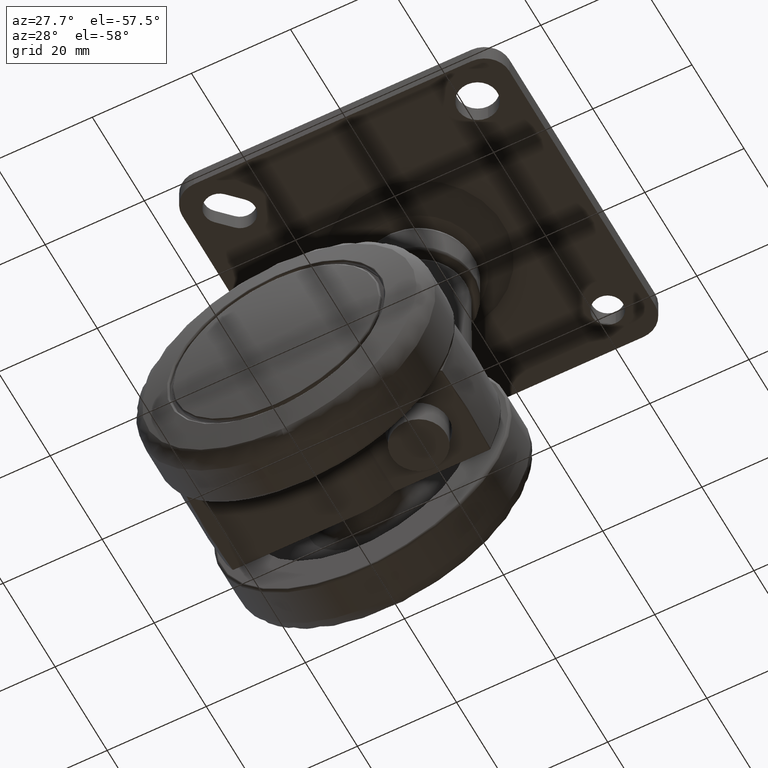
[diagram: clean part render]
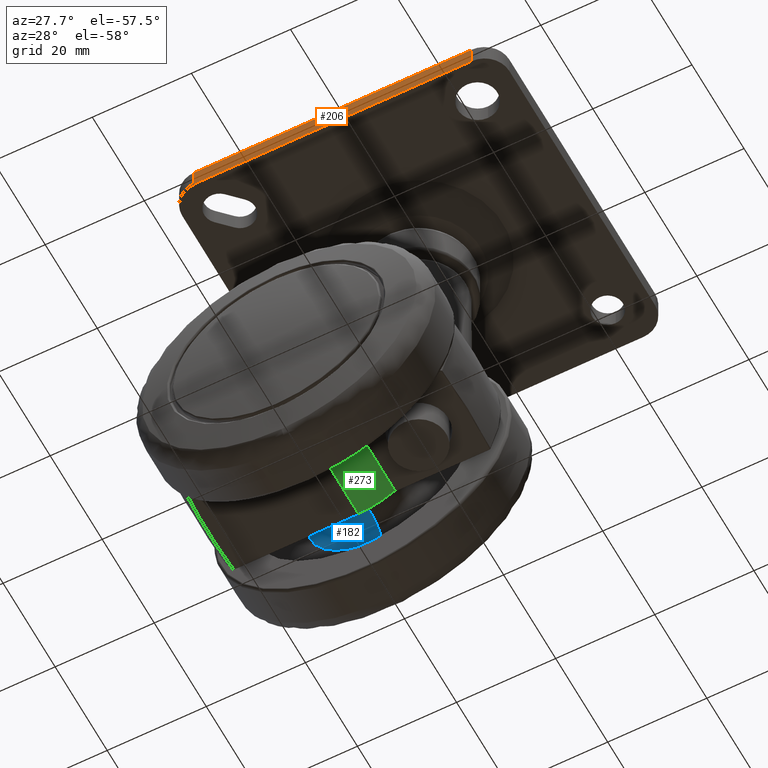
[diagram: same view with three faces highlighted in distinct colors, each labeled with its STEP entity id]
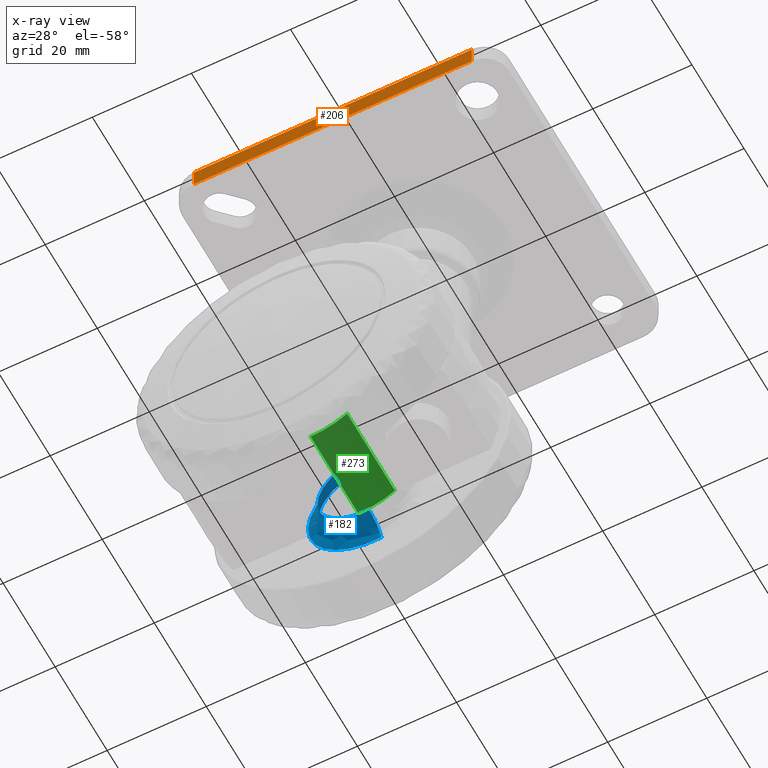
[diagram: x-ray of the same camera — body ghosted, the three highlighted faces saturated]
A machine part, auxiliary view with three faces highlighted in distinct colors.
The next image is the same camera in x-ray (body ghosted, the three faces saturated) — at least one of them is partly hidden behind the body in this view.
Their STEP definitions:

[orange] entity #206 — the highlighted planar face has unit normal (0, 1, -0).
#206=ADVANCED_FACE('',(#820),#819,.F.);
#819=PLANE('',#2691);
#820=FACE_OUTER_BOUND('',#2692,.T.);
#2688=CARTESIAN_POINT('',(-3.36000000000E+01,-3.80000000000E-01,-3.30000000000E+01));
#2689=DIRECTION('',(1.10433547828E-15,-2.80045621353E-29,1.00000000000E+00));
#2690=DIRECTION('',(1.00000000000E+00,-3.30514048027E-30,-1.10433547828E-15));
#2691=AXIS2_PLACEMENT_3D('',#2688,#2689,#2690);
#2692=EDGE_LOOP('',(#6341,#6342,#6343,#6344));
#6341=ORIENTED_EDGE('',*,*,#6922,.F.);
#6342=ORIENTED_EDGE('',*,*,#6946,.T.);
#6343=ORIENTED_EDGE('',*,*,#6900,.T.);
#6344=ORIENTED_EDGE('',*,*,#6947,.T.);
#6900=EDGE_CURVE('',#7772,#7773,#7774,.T.);
#6922=EDGE_CURVE('',#7920,#7927,#7928,.T.);
#6946=EDGE_CURVE('',#7920,#7772,#8088,.T.);
#6947=EDGE_CURVE('',#7773,#7927,#8094,.T.);
#7772=VERTEX_POINT('',#9847);
#7773=VERTEX_POINT('',#9848);
#7774=LINE('',#9849,#9850);
#7920=VERTEX_POINT('',#9946);
#7927=VERTEX_POINT('',#9951);
#7928=LINE('',#9952,#9953);
#8088=LINE('',#10053,#10054);
#8094=LINE('',#10056,#10057);
#9847=CARTESIAN_POINT('',(2.80000000000E+01,-8.32667268469E-14,-3.30000000000E+01));
#9848=CARTESIAN_POINT('',(-2.80000000000E+01,-8.32667268469E-14,-3.30000000000E+01));
#9849=CARTESIAN_POINT('',(2.80000000000E+01,-8.32667268469E-14,-3.30000000000E+01));
#9850=VECTOR('',#9851,5.60000000000E+01);
#9851=DIRECTION('',(-1.00000000000E+00,0.00000000000E+00,1.26882631386E-16));
#9946=CARTESIAN_POINT('',(2.80000000000E+01,3.80000000000E+00,-3.30000000000E+01));
#9951=CARTESIAN_POINT('',(-2.80000000000E+01,3.80000000000E+00,-3.30000000000E+01));
#9952=CARTESIAN_POINT('',(2.80000000000E+01,3.80000000000E+00,-3.30000000000E+01));
#9953=VECTOR('',#9954,5.60000000000E+01);
#9954=DIRECTION('',(-1.00000000000E+00,0.00000000000E+00,1.26882631386E-16));
#10053=CARTESIAN_POINT('',(2.80000000000E+01,3.80000000000E+00,-3.30000000000E+01));
#10054=VECTOR('',#10055,3.80000000000E+00);
#10055=DIRECTION('',(0.00000000000E+00,-1.00000000000E+00,0.00000000000E+00));
#10056=CARTESIAN_POINT('',(-2.80000000000E+01,-8.32667268469E-14,-3.30000000000E+01));
#10057=VECTOR('',#10058,3.80000000000E+00);
#10058=DIRECTION('',(0.00000000000E+00,1.00000000000E+00,0.00000000000E+00));

[blue] entity #182 — the highlighted face is a freeform B-spline surface patch.
#182=ADVANCED_FACE('',(#568),#567,.F.);
#567=( BOUNDED_SURFACE() B_SPLINE_SURFACE( 2,2,((#2283,#2284,#2285,#2286,#2287),(#2288,#2289,#2290,#2291,#2292),(#2293,#2294,#2295,#2296,#2297),(#2298,#2299,#2300,#2301,#2302),(#2303,#2304,#2305,#2306,#2307)), .UNSPECIFIED.,.F.,.F.,.F.) B_SPLINE_SURFACE_WITH_KNOTS((3,2,3),(3,2,3),(0.00000000000E+00,5.00000000000E-01,1.00000000000E+00),(0.00000000000E+00,5.00000000000E-01,1.00000000000E+00), .UNSPECIFIED. ) GEOMETRIC_REPRESENTATION_ITEM() RATIONAL_B_SPLINE_SURFACE(((1.00000000000E+00,7.07106781187E-01,1.00000000000E+00,7.07106781187E-01,1.00000000000E+00),(7.07106781187E-01,5.00000000000E-01,7.07106781187E-01,5.00000000000E-01,7.07106781187E-01),(1.00000000000E+00,7.07106781187E-01,1.00000000000E+00,7.07106781187E-01,1.00000000000E+00),(7.07106781187E-01,5.00000000000E-01,7.07106781187E-01,5.00000000000E-01,7.07106781187E-01),(1.00000000000E+00,7.07106781187E-01,1.00000000000E+00,7.07106781187E-01,1.00000000000E+00))) REPRESENTATION_ITEM('') SURFACE() );
#568=FACE_OUTER_BOUND('',#2308,.T.);
#2283=CARTESIAN_POINT('',(-9.50000000000E+00,6.59156497812E-16,1.00000000000E+00));
#2284=CARTESIAN_POINT('',(-9.50000000000E+00,6.59156497812E-16,5.00000000000E+00));
#2285=CARTESIAN_POINT('',(-1.35000000000E+01,9.36696075839E-16,5.00000000000E+00));
#2286=CARTESIAN_POINT('',(-1.75000000000E+01,1.21423565387E-15,5.00000000000E+00));
#2287=CARTESIAN_POINT('',(-1.75000000000E+01,1.21423565387E-15,1.00000000000E+00));
#2288=CARTESIAN_POINT('',(-9.50000000000E+00,9.50000000000E+00,1.00000000000E+00));
#2289=CARTESIAN_POINT('',(-9.50000000000E+00,9.50000000000E+00,5.00000000000E+00));
#2290=CARTESIAN_POINT('',(-1.35000000000E+01,1.35000000000E+01,5.00000000000E+00));
#2291=CARTESIAN_POINT('',(-1.75000000000E+01,1.75000000000E+01,5.00000000000E+00));
#2292=CARTESIAN_POINT('',(-1.75000000000E+01,1.75000000000E+01,1.00000000000E+00));
#2293=CARTESIAN_POINT('',(7.74492682175E-17,9.50000000000E+00,1.00000000000E+00));
#2294=CARTESIAN_POINT('',(7.74492682175E-17,9.50000000000E+00,5.00000000000E+00));
#2295=CARTESIAN_POINT('',(1.10059486414E-16,1.35000000000E+01,5.00000000000E+00));
#2296=CARTESIAN_POINT('',(1.42669704611E-16,1.75000000000E+01,5.00000000000E+00));
#2297=CARTESIAN_POINT('',(1.42669704611E-16,1.75000000000E+01,1.00000000000E+00));
#2298=CARTESIAN_POINT('',(9.50000000000E+00,9.50000000000E+00,1.00000000000E+00));
#2299=CARTESIAN_POINT('',(9.50000000000E+00,9.50000000000E+00,5.00000000000E+00));
#2300=CARTESIAN_POINT('',(1.35000000000E+01,1.35000000000E+01,5.00000000000E+00));
#2301=CARTESIAN_POINT('',(1.75000000000E+01,1.75000000000E+01,5.00000000000E+00));
#2302=CARTESIAN_POINT('',(1.75000000000E+01,1.75000000000E+01,1.00000000000E+00));
#2303=CARTESIAN_POINT('',(9.50000000000E+00,5.04257961378E-16,1.00000000000E+00));
#2304=CARTESIAN_POINT('',(9.50000000000E+00,5.04257961378E-16,5.00000000000E+00));
#2305=CARTESIAN_POINT('',(1.35000000000E+01,7.16577103010E-16,5.00000000000E+00));
#2306=CARTESIAN_POINT('',(1.75000000000E+01,9.28896244643E-16,5.00000000000E+00));
#2307=CARTESIAN_POINT('',(1.75000000000E+01,9.28896244643E-16,1.00000000000E+00));
#2308=EDGE_LOOP('',(#6212,#6213,#6214,#6215));
#6212=ORIENTED_EDGE('',*,*,#6823,.F.);
#6213=ORIENTED_EDGE('',*,*,#6872,.F.);
#6214=ORIENTED_EDGE('',*,*,#6870,.F.);
#6215=ORIENTED_EDGE('',*,*,#6873,.T.);
#6823=EDGE_CURVE('',#7261,#7260,#7268,.T.);
#6870=EDGE_CURVE('',#7569,#7562,#7582,.T.);
#6872=EDGE_CURVE('',#7562,#7261,#7594,.T.);
#6873=EDGE_CURVE('',#7569,#7260,#7600,.T.);
#7260=VERTEX_POINT('',#9525);
#7261=VERTEX_POINT('',#9526);
#7268=CIRCLE('',#9534,1.35000000000E+01);
#7562=VERTEX_POINT('',#9724);
#7569=VERTEX_POINT('',#9727);
#7582=CIRCLE('',#9737,9.50000000000E+00);
#7594=(BOUNDED_CURVE() B_SPLINE_CURVE(2,(#9742,#9743,#9744),.UNSPECIFIED.,.F.,.F.) B_SPLINE_CURVE_WITH_KNOTS((3,3),(0.00000000000E+00,5.00000000000E-01),.UNSPECIFIED.) CURVE() GEOMETRIC_REPRESENTATION_ITEM() RATIONAL_B_SPLINE_CURVE((1.00000000000E+00,7.07106781187E-01,1.00000000000E+00)) REPRESENTATION_ITEM('') );
#7600=(BOUNDED_CURVE() B_SPLINE_CURVE(2,(#9745,#9746,#9747),.UNSPECIFIED.,.F.,.F.) B_SPLINE_CURVE_WITH_KNOTS((3,3),(0.00000000000E+00,4.99999999911E-01),.UNSPECIFIED.) CURVE() GEOMETRIC_REPRESENTATION_ITEM() RATIONAL_B_SPLINE_CURVE((7.50000000000E-01,5.30330085929E-01,7.49999999922E-01)) REPRESENTATION_ITEM('') );
#9525=CARTESIAN_POINT('',(-1.35000000000E+01,9.36750677027E-16,5.00000000000E+00));
#9526=CARTESIAN_POINT('',(1.35000000000E+01,-2.36847578587E-15,5.00000000000E+00));
#9531=CARTESIAN_POINT('',(0.00000000000E+00,0.00000000000E+00,5.00000000000E+00));
#9532=DIRECTION('',(0.00000000000E+00,0.00000000000E+00,1.00000000000E+00));
#9533=DIRECTION('',(-1.00000000000E+00,1.91849574421E-16,0.00000000000E+00));
#9534=AXIS2_PLACEMENT_3D('',#9531,#9532,#9533);
#9724=CARTESIAN_POINT('',(9.50000000000E+00,-1.18423789293E-15,1.00000000000E+00));
#9727=CARTESIAN_POINT('',(-9.50000000000E+00,-5.04181115260E-16,1.00000000000E+00));
#9734=CARTESIAN_POINT('',(0.00000000000E+00,0.00000000000E+00,1.00000000000E+00));
#9735=DIRECTION('',(0.00000000000E+00,0.00000000000E+00,-1.00000000000E+00));
#9736=DIRECTION('',(-1.00000000000E+00,6.93889390391E-17,-0.00000000000E+00));
#9737=AXIS2_PLACEMENT_3D('',#9734,#9735,#9736);
#9742=CARTESIAN_POINT('',(9.50000000000E+00,-1.82257095700E-15,1.00000000000E+00));
#9743=CARTESIAN_POINT('',(9.50000000000E+00,-1.82257095700E-15,5.00000000000E+00));
#9744=CARTESIAN_POINT('',(1.35000000000E+01,-2.58996925469E-15,5.00000000000E+00));
#9745=CARTESIAN_POINT('',(-9.50000000000E+00,2.96059473233E-15,1.00000000000E+00));
#9746=CARTESIAN_POINT('',(-9.50000000000E+00,2.09345661180E-15,4.99999999899E+00));
#9747=CARTESIAN_POINT('',(-1.34999999990E+01,3.55271367843E-15,5.00000000000E+00));

[green] entity #273 — the highlighted cylindrical surface (partial cylindrical patch) has radius 13.25 mm, axis along (0, 1, 0).
#273=ADVANCED_FACE('',(#1493),#1492,.T.);
#1492=CYLINDRICAL_SURFACE('',#5427,1.32500000000E+01);
#1493=FACE_OUTER_BOUND('',#5428,.T.);
#5424=CARTESIAN_POINT('',(0.00000000000E+00,0.00000000000E+00,0.00000000000E+00));
#5425=DIRECTION('',(-0.00000000000E+00,1.00000000000E+00,-0.00000000000E+00));
#5426=DIRECTION('',(-1.00000000000E+00,-0.00000000000E+00,-0.00000000000E+00));
#5427=AXIS2_PLACEMENT_3D('',#5424,#5425,#5426);
#5428=EDGE_LOOP('',(#6596,#6597,#6598,#6599));
#6596=ORIENTED_EDGE('',*,*,#7075,.F.);
#6597=ORIENTED_EDGE('',*,*,#7047,.T.);
#6598=ORIENTED_EDGE('',*,*,#7072,.T.);
#6599=ORIENTED_EDGE('',*,*,#7058,.T.);
#7047=EDGE_CURVE('',#8733,#8700,#8747,.T.);
#7058=EDGE_CURVE('',#8754,#8813,#8820,.T.);
#7072=EDGE_CURVE('',#8700,#8754,#8910,.T.);
#7075=EDGE_CURVE('',#8733,#8813,#8930,.T.);
#8700=VERTEX_POINT('',#10831);
#8733=VERTEX_POINT('',#10854);
#8747=CIRCLE('',#10867,1.32500000000E+01);
#8754=VERTEX_POINT('',#10869);
#8813=VERTEX_POINT('',#10912);
#8820=CIRCLE('',#10920,1.32500000000E+01);
#8910=LINE('',#10979,#10980);
#8930=LINE('',#10992,#10993);
#10831=CARTESIAN_POINT('',(7.38664335135E+00,9.20000000000E+00,-1.10000000000E+01));
#10854=CARTESIAN_POINT('',(0.00000000000E+00,9.20000000000E+00,-1.32500000000E+01));
#10864=CARTESIAN_POINT('',(0.00000000000E+00,9.20000000000E+00,0.00000000000E+00));
#10865=DIRECTION('',(0.00000000000E+00,-1.00000000000E+00,0.00000000000E+00));
#10866=DIRECTION('',(-0.00000000000E+00,-0.00000000000E+00,1.00000000000E+00));
#10867=AXIS2_PLACEMENT_3D('',#10864,#10865,#10866);
#10869=CARTESIAN_POINT('',(7.38664335135E+00,-9.20000000000E+00,-1.10000000000E+01));
#10912=CARTESIAN_POINT('',(0.00000000000E+00,-9.20000000000E+00,-1.32500000000E+01));
#10917=CARTESIAN_POINT('',(0.00000000000E+00,-9.20000000000E+00,0.00000000000E+00));
#10918=DIRECTION('',(0.00000000000E+00,1.00000000000E+00,0.00000000000E+00));
#10919=DIRECTION('',(-5.57482517083E-01,-0.00000000000E+00,8.30188679245E-01));
#10920=AXIS2_PLACEMENT_3D('',#10917,#10918,#10919);
#10979=CARTESIAN_POINT('',(7.38664335135E+00,9.20000000000E+00,-1.10000000000E+01));
#10980=VECTOR('',#10981,1.84000000000E+01);
#10981=DIRECTION('',(0.00000000000E+00,-1.00000000000E+00,0.00000000000E+00));
#10992=CARTESIAN_POINT('',(0.00000000000E+00,9.20000000000E+00,-1.32500000000E+01));
#10993=VECTOR('',#10994,1.84000000000E+01);
#10994=DIRECTION('',(0.00000000000E+00,-1.00000000000E+00,0.00000000000E+00));